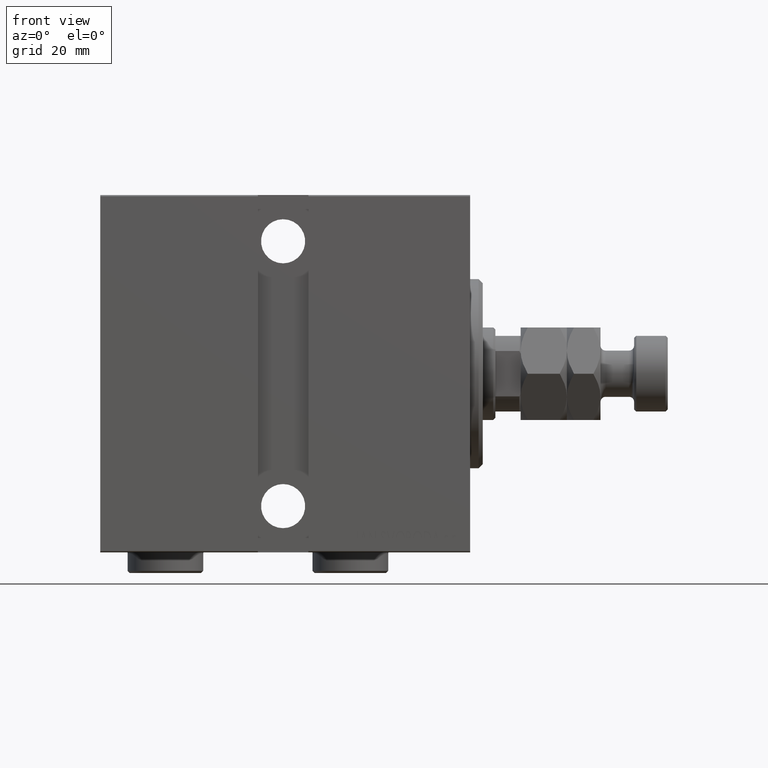
[diagram: clean part render]
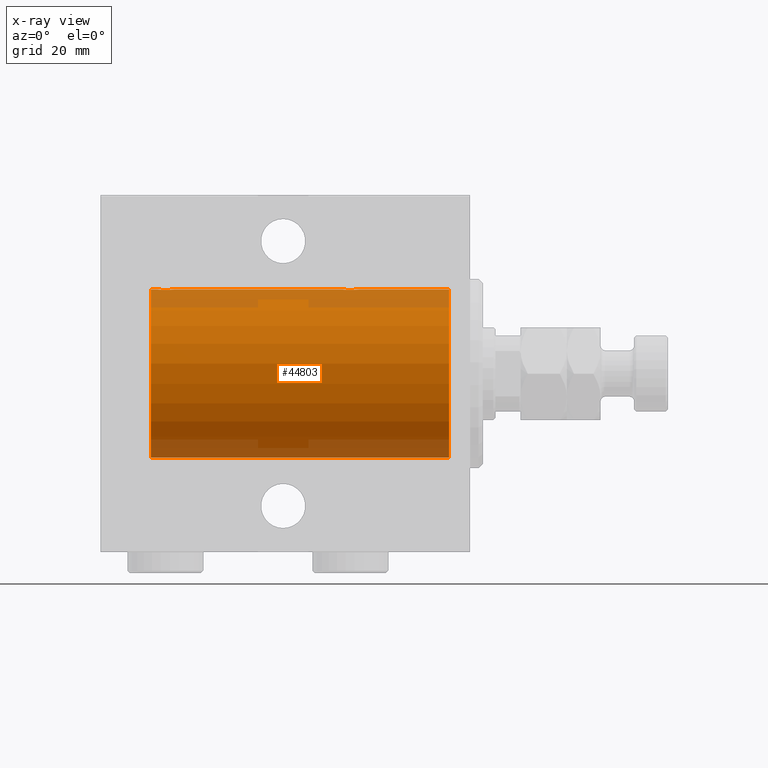
[diagram: x-ray — body ghosted, one internal face saturated and labeled with its STEP entity id]
A machine part, front view, then the same camera in x-ray: the body is ghosted and one INTERNAL B-rep face — a face not visible from any outside direction — is saturated and labeled: STEP entity #44803.
In plain terms, the highlighted cylindrical surface (partial cylindrical patch) has radius 20 mm, axis along (1, 0, -0).
Its self-contained STEP definition (entity closure, byte-faithful):
#1318 = ORIENTED_EDGE ( 'NONE', *, *, #32599, .T. ) ;
#1425 = CIRCLE ( 'NONE', #5129, 20.00000000000000000 ) ;
#1854 = CARTESIAN_POINT ( 'NONE',  ( 27.49702773215046392, 1.735228749583825003, 19.92471474456648650 ) ) ;
#2077 = CARTESIAN_POINT ( 'NONE',  ( 26.51308707988552626, 0.2631998640366420283, 19.99867931558985390 ) ) ;
#2151 = EDGE_CURVE ( 'NONE', #12214, #12041, #31602, .T. ) ;
#2256 = CARTESIAN_POINT ( 'NONE',  ( 71.17939834916164443, 1.507796451871717736, 19.94330239452387943 ) ) ;
#2339 = EDGE_CURVE ( 'NONE', #20079, #20399, #34344, .T. ) ;
#2486 = CARTESIAN_POINT ( 'NONE',  ( 74.39765113166075139, 0.6450624715427611955, 19.98996196681220638 ) ) ;
#2714 = CARTESIAN_POINT ( 'NONE',  ( 70.50000000000000000, -1.553188236289650144E-23, 20.00000000000000000 ) ) ;
#5129 = AXIS2_PLACEMENT_3D ( 'NONE', #23019, #12392, #37568 ) ;
#5555 = CARTESIAN_POINT ( 'NONE',  ( 27.61403810544162951, 1.797847595792755770, 19.91909332229799290 ) ) ;
#5733 = CARTESIAN_POINT ( 'NONE',  ( 70.99261358456014648, 1.321069663197660837, 19.95654117037011943 ) ) ;
#5780 = CARTESIAN_POINT ( 'NONE',  ( 27.17939834916165509, 1.507796451871719734, 19.94330239452387588 ) ) ;
#5955 = CARTESIAN_POINT ( 'NONE',  ( 72.76180153897439595, 1.999905101582713396, 19.89975827978156531 ) ) ;
#6005 = CARTESIAN_POINT ( 'NONE',  ( 30.29721343056696270, 0.8872481584516771491, 19.98067755938510004 ) ) ;
#6641 = CARTESIAN_POINT ( 'NONE',  ( 70.90992932310328456, 1.220099331833891743, 19.96304379627741454 ) ) ;
#6982 = B_SPLINE_CURVE_WITH_KNOTS ( 'NONE', 3,
 ( #27639, #41077, #38275, #13103, #2486, #23502, #44558, #16345, #41755, #27191, #45462, #23724, #5955, #33892, #34809, #44786, #31102, #10099, #16571, #45231, #2256, #5733, #6641, #41304, #19810, #30658, #24177, #20485, #10319, #2714 ),
 .UNSPECIFIED., .F., .F.,
 ( 4, 2, 2, 2, 2, 2, 2, 2, 2, 2, 2, 2, 2, 2, 4 ),
 ( 1.146295712831832348E-18, 0.0003910512220831368810, 0.0007821024441662726779, 0.001173153666249408420, 0.001564204888332544055, 0.002346307332498786917, 0.003128409776665029562, 0.003519460998748130502, 0.003910512220831229707, 0.004301563442914330647, 0.004692614664997430719, 0.005083665887080530792, 0.005474717109163631731, 0.005865768331246731804, 0.006256819553329832743 ),
 .UNSPECIFIED. ) ;
#7100 = EDGE_CURVE ( 'NONE', #35422, #12214, #31766, .T. ) ;
#7200 = ORIENTED_EDGE ( 'NONE', *, *, #14407, .T. ) ;
#7605 = AXIS2_PLACEMENT_3D ( 'NONE', #11292, #32535, #42510 ) ;
#8421 = CARTESIAN_POINT ( 'NONE',  ( 74.50000000000001421, 1.179655747245154047E-15, 20.00000000000000000 ) ) ;
#8707 = CARTESIAN_POINT ( 'NONE',  ( 76.00000000000000000, 0.000000000000000000, 20.00000000000000000 ) ) ;
#9994 = VECTOR ( 'NONE', #14449, 1000.000000000000000 ) ;
#10099 = CARTESIAN_POINT ( 'NONE',  ( 71.61403810544166504, 1.797847595792759323, 19.91909332229798935 ) ) ;
#10319 = CARTESIAN_POINT ( 'NONE',  ( 70.50000000000004263, 0.1305706983324428083, 20.00000000000000355 ) ) ;
#11013 = EDGE_CURVE ( 'NONE', #20399, #35422, #6982, .T. ) ;
#11292 = CARTESIAN_POINT ( 'NONE',  ( 76.00000000000000000, 0.000000000000000000, 0.000000000000000000 ) ) ;
#11817 = AXIS2_PLACEMENT_3D ( 'NONE', #23371, #40717, #12063 ) ;
#12041 = VERTEX_POINT ( 'NONE', #36177 ) ;
#12063 = DIRECTION ( 'NONE',  ( 0.000000000000000000, 0.000000000000000000, 1.000000000000000000 ) ) ;
#12214 = VERTEX_POINT ( 'NONE', #18534 ) ;
#12392 = DIRECTION ( 'NONE',  ( -1.000000000000000000, 0.000000000000000000, 0.000000000000000000 ) ) ;
#12465 = CARTESIAN_POINT ( 'NONE',  ( 30.09059733457551289, 1.219458756546269784, 19.96308513509966431 ) ) ;
#12928 = CARTESIAN_POINT ( 'NONE',  ( 29.02513908454998059, 1.947330458682949850, 19.90522393307484705 ) ) ;
#13103 = CARTESIAN_POINT ( 'NONE',  ( 74.43615228383329452, 0.5179893069484606816, 19.99370013622814568 ) ) ;
#13149 = CARTESIAN_POINT ( 'NONE',  ( 28.76180153897437819, 1.999905101582717171, 19.89975827978156531 ) ) ;
#13378 = CARTESIAN_POINT ( 'NONE',  ( 30.48701494615325203, 0.2622407139811169796, 19.99868965376115071 ) ) ;
#14253 = VERTEX_POINT ( 'NONE', #25259 ) ;
#14407 = EDGE_CURVE ( 'NONE', #12041, #14253, #20158, .T. ) ;
#14449 = DIRECTION ( 'NONE',  ( -1.000000000000000000, -0.000000000000000000, -0.000000000000000000 ) ) ;
#15941 = CARTESIAN_POINT ( 'NONE',  ( 26.56426851132707867, 0.5196544277756658392, 19.99365919015135873 ) ) ;
#16345 = CARTESIAN_POINT ( 'NONE',  ( 74.09059733457554842, 1.219458756546261791, 19.96308513509966787 ) ) ;
#16358 = ORIENTED_EDGE ( 'NONE', *, *, #37410, .F. ) ;
#16571 = CARTESIAN_POINT ( 'NONE',  ( 71.49702773215048524, 1.735228749583821672, 19.92471474456648650 ) ) ;
#16619 = CARTESIAN_POINT ( 'NONE',  ( 27.28039724650255948, 1.590453176650909350, 19.93679350243183634 ) ) ;
#16711 = LINE ( 'NONE', #37740, #20067 ) ;
#18534 = CARTESIAN_POINT ( 'NONE',  ( 30.50000000000000000, -3.987914257189907626E-15, 20.00000000000000000 ) ) ;
#19406 = ORIENTED_EDGE ( 'NONE', *, *, #7100, .T. ) ;
#19810 = CARTESIAN_POINT ( 'NONE',  ( 70.70246098872841856, 0.8865903856744251632, 19.98070694681040038 ) ) ;
#19857 = CARTESIAN_POINT ( 'NONE',  ( 26.70246098872837237, 0.8865903856744267175, 19.98070694681038972 ) ) ;
#20067 = VECTOR ( 'NONE', #27329, 1000.000000000000000 ) ;
#20079 = VERTEX_POINT ( 'NONE', #8707 ) ;
#20083 = CARTESIAN_POINT ( 'NONE',  ( 26.90992932310325969, 1.220099331833889966, 19.96304379627741099 ) ) ;
#20158 = LINE ( 'NONE', #23623, #43266 ) ;
#20373 = ORIENTED_EDGE ( 'NONE', *, *, #2151, .T. ) ;
#20399 = VERTEX_POINT ( 'NONE', #8421 ) ;
#20485 = CARTESIAN_POINT ( 'NONE',  ( 70.51308707988555113, 0.2631998640366408626, 19.99867931558986456 ) ) ;
#21774 = VERTEX_POINT ( 'NONE', #31865 ) ;
#23019 = CARTESIAN_POINT ( 'NONE',  ( 76.00000000000000000, 0.000000000000000000, 0.000000000000000000 ) ) ;
#23093 = CARTESIAN_POINT ( 'NONE',  ( 30.23576365127895116, 1.002099838626316464, 19.97517568592526160 ) ) ;
#23324 = CARTESIAN_POINT ( 'NONE',  ( 27.85628869360148840, 1.898109641280496085, 19.90978941500366872 ) ) ;
#23371 = CARTESIAN_POINT ( 'NONE',  ( 5.000000000000004441, 0.000000000000000000, 0.000000000000000000 ) ) ;
#23502 = CARTESIAN_POINT ( 'NONE',  ( 74.29721343056698402, 0.8872481584516744846, 19.98067755938509649 ) ) ;
#23548 = CARTESIAN_POINT ( 'NONE',  ( 28.23758582179997845, 1.987020435121066742, 19.90106552791688799 ) ) ;
#23623 = CARTESIAN_POINT ( 'NONE',  ( 76.00000000000000000, 0.000000000000000000, 20.00000000000000000 ) ) ;
#23724 = CARTESIAN_POINT ( 'NONE',  ( 73.02513908455000546, 1.947330458682945187, 19.90522393307485061 ) ) ;
#24177 = CARTESIAN_POINT ( 'NONE',  ( 70.56426851132711420, 0.5196544277756652841, 19.99365919015135873 ) ) ;
#25259 = CARTESIAN_POINT ( 'NONE',  ( 5.000000000000004441, 0.000000000000000000, 20.00000000000000000 ) ) ;
#26129 = EDGE_CURVE ( 'NONE', #20079, #21774, #1425, .T. ) ;
#26557 = CARTESIAN_POINT ( 'NONE',  ( 30.00615770380712632, 1.322305185229308844, 19.95645382900617193 ) ) ;
#26729 = DIRECTION ( 'NONE',  ( -1.000000000000000000, -0.000000000000000000, -0.000000000000000000 ) ) ;
#26784 = CARTESIAN_POINT ( 'NONE',  ( 29.72950112230633835, 1.598854313793181658, 19.93684595445884966 ) ) ;
#27016 = CARTESIAN_POINT ( 'NONE',  ( 27.98100525813888595, 1.935912154109690198, 19.90610216711450775 ) ) ;
#27191 = CARTESIAN_POINT ( 'NONE',  ( 73.72950112230634545, 1.598854313793176773, 19.93684595445884256 ) ) ;
#27239 = CARTESIAN_POINT ( 'NONE',  ( 26.76510545398016205, 1.003547732426798955, 19.97510079925437054 ) ) ;
#27329 = DIRECTION ( 'NONE',  ( -1.000000000000000000, -0.000000000000000000, -0.000000000000000000 ) ) ;
#27639 = CARTESIAN_POINT ( 'NONE',  ( 74.50000000000001421, 1.179655747245154047E-15, 20.00000000000000000 ) ) ;
#29727 = VECTOR ( 'NONE', #26729, 1000.000000000000000 ) ;
#30021 = CARTESIAN_POINT ( 'NONE',  ( 26.50000000000000000, 0.1305706983324424475, 20.00000000000000355 ) ) ;
#30474 = CARTESIAN_POINT ( 'NONE',  ( 30.39765113166073363, 0.6450624715427637490, 19.98996196681219928 ) ) ;
#30608 = ORIENTED_EDGE ( 'NONE', *, *, #11013, .T. ) ;
#30658 = CARTESIAN_POINT ( 'NONE',  ( 70.60210312641140717, 0.6443418861413057197, 19.98998539619404369 ) ) ;
#30922 = CARTESIAN_POINT ( 'NONE',  ( 29.50645759073829311, 1.747830109444741042, 19.92373272380676852 ) ) ;
#31102 = CARTESIAN_POINT ( 'NONE',  ( 71.85628869360149906, 1.898109641280497639, 19.90978941500366872 ) ) ;
#31602 = B_SPLINE_CURVE_WITH_KNOTS ( 'NONE', 3,
 ( #44835, #33483, #13378, #37423, #30474, #6005, #23093, #12465, #26557, #26784, #30922, #12928, #13149, #40666, #23548, #27016, #23324, #5555, #1854, #16619, #5780, #41126, #20083, #27239, #19857, #41354, #15941, #2077, #30021, #44146 ),
 .UNSPECIFIED., .F., .F.,
 ( 4, 2, 2, 2, 2, 2, 2, 2, 2, 2, 2, 2, 2, 2, 4 ),
 ( 6.737296076284884849E-18, 0.0003910512220831210517, 0.0007821024441662353813, 0.001173153666249349657, 0.001564204888332464041, 0.002346307332498693676, 0.003128409776664922877, 0.003519460998748032490, 0.003910512220831142104, 0.004301563442914251717, 0.004692614664997360463, 0.005083665887080470944, 0.005474717109163579690, 0.005865768331246689303, 0.006256819553329798916 ),
 .UNSPECIFIED. ) ;
#31766 = LINE ( 'NONE', #35249, #9994 ) ;
#31865 = CARTESIAN_POINT ( 'NONE',  ( 76.00000000000000000, 2.449293598294706513E-15, -20.00000000000000000 ) ) ;
#32535 = DIRECTION ( 'NONE',  ( -1.000000000000000000, -0.000000000000000000, -0.000000000000000000 ) ) ;
#32599 = EDGE_CURVE ( 'NONE', #14253, #44808, #36890, .T. ) ;
#33483 = CARTESIAN_POINT ( 'NONE',  ( 30.49999999999997868, 0.1322335637814716913, 19.99999999999999645 ) ) ;
#33840 = ORIENTED_EDGE ( 'NONE', *, *, #2339, .T. ) ;
#33892 = CARTESIAN_POINT ( 'NONE',  ( 72.37018818709296397, 2.000047251570878259, 19.89974399317116038 ) ) ;
#34344 = LINE ( 'NONE', #44319, #29727 ) ;
#34476 = DIRECTION ( 'NONE',  ( -1.000000000000000000, -0.000000000000000000, -0.000000000000000000 ) ) ;
#34809 = CARTESIAN_POINT ( 'NONE',  ( 72.23758582180001042, 1.987020435121064521, 19.90106552791689154 ) ) ;
#35249 = CARTESIAN_POINT ( 'NONE',  ( 76.00000000000000000, 0.000000000000000000, 20.00000000000000000 ) ) ;
#35422 = VERTEX_POINT ( 'NONE', #37517 ) ;
#36012 = CYLINDRICAL_SURFACE ( 'NONE', #7605, 20.00000000000000000 ) ;
#36177 = CARTESIAN_POINT ( 'NONE',  ( 26.50000000000000355, -1.552596590610734385E-23, 20.00000000000000000 ) ) ;
#36842 = EDGE_LOOP ( 'NONE', ( #16358, #40477, #33840, #30608, #19406, #20373, #7200, #1318 ) ) ;
#36890 = CIRCLE ( 'NONE', #11817, 20.00000000000000000 ) ;
#37410 = EDGE_CURVE ( 'NONE', #21774, #44808, #16711, .T. ) ;
#37423 = CARTESIAN_POINT ( 'NONE',  ( 30.43615228383327320, 0.5179893069484664547, 19.99370013622814568 ) ) ;
#37517 = CARTESIAN_POINT ( 'NONE',  ( 70.50000000000000000, -1.553188236289650144E-23, 20.00000000000000000 ) ) ;
#37568 = DIRECTION ( 'NONE',  ( 0.000000000000000000, 0.000000000000000000, 1.000000000000000000 ) ) ;
#37740 = CARTESIAN_POINT ( 'NONE',  ( 76.00000000000000000, 2.449293598294706513E-15, -20.00000000000000000 ) ) ;
#38275 = CARTESIAN_POINT ( 'NONE',  ( 74.48701494615326624, 0.2622407139811093191, 19.99868965376115426 ) ) ;
#39493 = FACE_OUTER_BOUND ( 'NONE', #36842, .T. ) ;
#40477 = ORIENTED_EDGE ( 'NONE', *, *, #26129, .F. ) ;
#40666 = CARTESIAN_POINT ( 'NONE',  ( 28.37018818709292844, 2.000047251570879148, 19.89974399317114617 ) ) ;
#40717 = DIRECTION ( 'NONE',  ( -1.000000000000000000, 0.000000000000000000, 0.000000000000000000 ) ) ;
#41077 = CARTESIAN_POINT ( 'NONE',  ( 74.50000000000001421, 0.1322335637814731901, 20.00000000000000000 ) ) ;
#41126 = CARTESIAN_POINT ( 'NONE',  ( 26.99261358456011095, 1.321069663197662836, 19.95654117037011588 ) ) ;
#41304 = CARTESIAN_POINT ( 'NONE',  ( 70.76510545398019758, 1.003547732426800065, 19.97510079925437765 ) ) ;
#41354 = CARTESIAN_POINT ( 'NONE',  ( 26.60210312641135033, 0.6443418861413082732, 19.98998539619404013 ) ) ;
#41755 = CARTESIAN_POINT ( 'NONE',  ( 74.00615770380713343, 1.322305185229304181, 19.95645382900617193 ) ) ;
#42510 = DIRECTION ( 'NONE',  ( 0.000000000000000000, 0.000000000000000000, 1.000000000000000000 ) ) ;
#42735 = CARTESIAN_POINT ( 'NONE',  ( 5.000000000000004441, 2.449293598294706513E-15, -20.00000000000000000 ) ) ;
#43266 = VECTOR ( 'NONE', #34476, 1000.000000000000000 ) ;
#44146 = CARTESIAN_POINT ( 'NONE',  ( 26.50000000000000355, -1.552596590610734385E-23, 20.00000000000000000 ) ) ;
#44319 = CARTESIAN_POINT ( 'NONE',  ( 76.00000000000000000, 0.000000000000000000, 20.00000000000000000 ) ) ;
#44558 = CARTESIAN_POINT ( 'NONE',  ( 74.23576365127897247, 1.002099838626307138, 19.97517568592526516 ) ) ;
#44786 = CARTESIAN_POINT ( 'NONE',  ( 71.98100525813890727, 1.935912154109689531, 19.90610216711451130 ) ) ;
#44803 = ADVANCED_FACE ( 'NONE', ( #39493 ), #36012, .F. ) ;
#44808 = VERTEX_POINT ( 'NONE', #42735 ) ;
#44835 = CARTESIAN_POINT ( 'NONE',  ( 30.50000000000000000, -3.987914257189907626E-15, 20.00000000000000000 ) ) ;
#45231 = CARTESIAN_POINT ( 'NONE',  ( 71.28039724650254527, 1.590453176650904910, 19.93679350243183990 ) ) ;
#45462 = CARTESIAN_POINT ( 'NONE',  ( 73.50645759073830732, 1.747830109444736602, 19.92373272380677207 ) ) ;